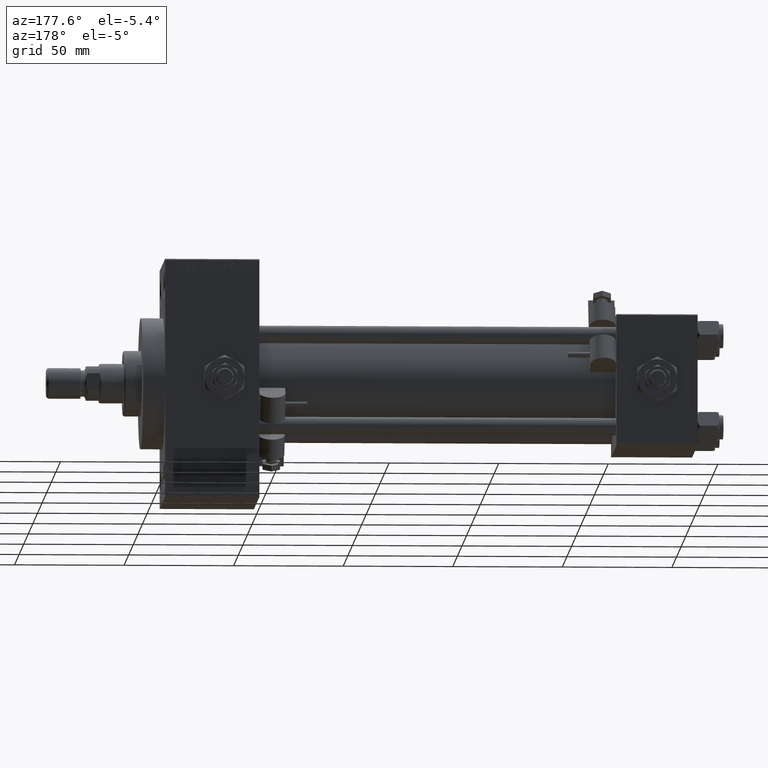
[diagram: clean part render]
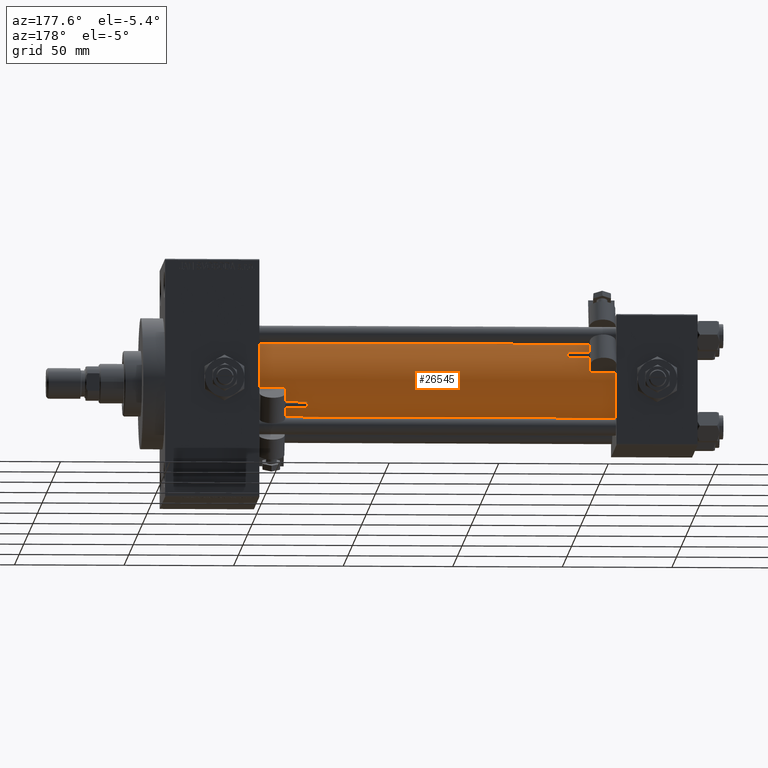
[diagram: same view with one face highlighted and labeled with its STEP entity id]
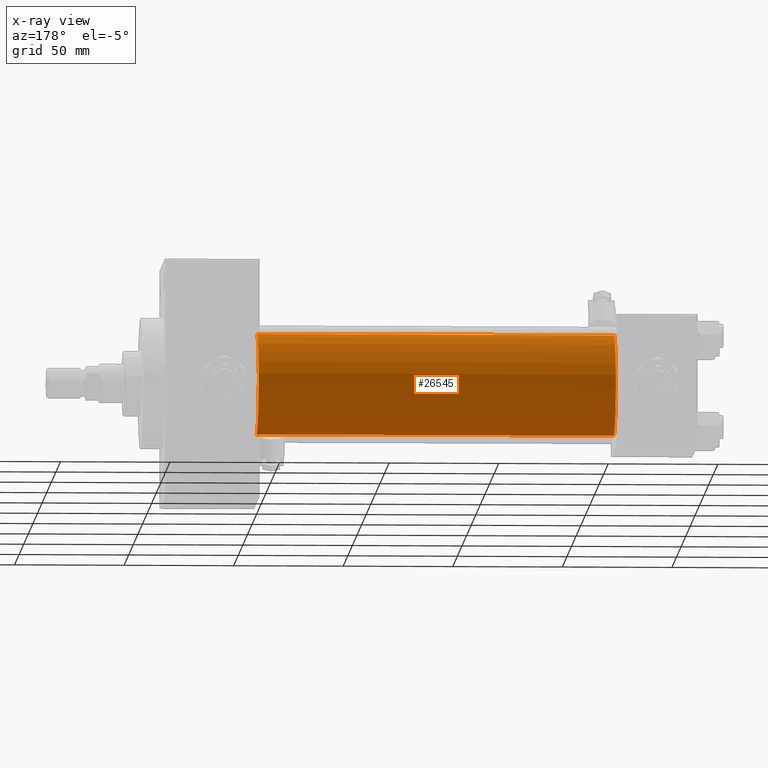
[diagram: x-ray of the same camera — body ghosted, the highlighted face saturated]
A machine part, auxiliary view. The second image highlights one B-rep face of the part: STEP entity #26545.
The next image is the same camera in x-ray: the body ghosted, the highlighted face saturated — about 0% of this face is hidden behind the body in this view.
In plain terms, the highlighted cylindrical surface (partial cylindrical patch) has radius 23 mm, axis along (-1, -0, -0).
Its self-contained STEP definition (entity closure, byte-faithful):
#188 = ORIENTED_EDGE ( 'NONE', *, *, #37328, .F. ) ;
#304 = LINE ( 'NONE', #42728, #10981 ) ;
#631 = DIRECTION ( 'NONE',  ( 0.000000000000000000, 0.000000000000000000, 1.000000000000000000 ) ) ;
#1124 = DIRECTION ( 'NONE',  ( -1.000000000000000000, -0.000000000000000000, -0.000000000000000000 ) ) ;
#2352 = AXIS2_PLACEMENT_3D ( 'NONE', #27592, #8063, #11664 ) ;
#2694 = VERTEX_POINT ( 'NONE', #21381 ) ;
#8063 = DIRECTION ( 'NONE',  ( 1.000000000000000000, 0.000000000000000000, 0.000000000000000000 ) ) ;
#10981 = VECTOR ( 'NONE', #19343, 1000.000000000000000 ) ;
#11659 = EDGE_CURVE ( 'NONE', #27377, #2694, #304, .T. ) ;
#11664 = DIRECTION ( 'NONE',  ( 0.000000000000000000, 0.000000000000000000, -1.000000000000000000 ) ) ;
#13402 = AXIS2_PLACEMENT_3D ( 'NONE', #24006, #1124, #631 ) ;
#16424 = CARTESIAN_POINT ( 'NONE',  ( 200.0000000000000000, 2.146024240737016609E-16, -23.00000000000000000 ) ) ;
#19343 = DIRECTION ( 'NONE',  ( -1.000000000000000000, -0.000000000000000000, -0.000000000000000000 ) ) ;
#21202 = CIRCLE ( 'NONE', #2352, 23.00000000000000000 ) ;
#21303 = CARTESIAN_POINT ( 'NONE',  ( 200.0000000000000000, -2.602085213965210642E-15, 23.00000000000000000 ) ) ;
#21381 = CARTESIAN_POINT ( 'NONE',  ( 37.00000000000000711, -2.602085213965210642E-15, 23.00000000000000000 ) ) ;
#24006 = CARTESIAN_POINT ( 'NONE',  ( 200.0000000000000000, -2.602085213965210642E-15, 0.000000000000000000 ) ) ;
#24070 = CIRCLE ( 'NONE', #46233, 23.00000000000000000 ) ;
#26006 = EDGE_CURVE ( 'NONE', #45077, #2694, #24070, .T. ) ;
#26545 = ADVANCED_FACE ( 'NONE', ( #39698 ), #44551, .T. ) ;
#27377 = VERTEX_POINT ( 'NONE', #21303 ) ;
#27592 = CARTESIAN_POINT ( 'NONE',  ( 200.0000000000000000, -2.602085213965210642E-15, 0.000000000000000000 ) ) ;
#27998 = VERTEX_POINT ( 'NONE', #43702 ) ;
#28234 = DIRECTION ( 'NONE',  ( -1.000000000000000000, -0.000000000000000000, -0.000000000000000000 ) ) ;
#29140 = VECTOR ( 'NONE', #28234, 1000.000000000000000 ) ;
#29173 = EDGE_CURVE ( 'NONE', #27998, #45077, #40316, .T. ) ;
#29814 = DIRECTION ( 'NONE',  ( 1.000000000000000000, -0.000000000000000000, 0.000000000000000000 ) ) ;
#33174 = CARTESIAN_POINT ( 'NONE',  ( 37.00000000000000711, -2.602085213965210642E-15, 0.000000000000000000 ) ) ;
#35680 = EDGE_LOOP ( 'NONE', ( #188, #49103, #46482, #41006 ) ) ;
#37328 = EDGE_CURVE ( 'NONE', #27998, #27377, #21202, .T. ) ;
#39698 = FACE_OUTER_BOUND ( 'NONE', #35680, .T. ) ;
#40316 = LINE ( 'NONE', #16424, #29140 ) ;
#41006 = ORIENTED_EDGE ( 'NONE', *, *, #11659, .F. ) ;
#41146 = DIRECTION ( 'NONE',  ( 0.000000000000000000, 0.000000000000000000, 1.000000000000000000 ) ) ;
#42728 = CARTESIAN_POINT ( 'NONE',  ( 200.0000000000000000, -2.602085213965210642E-15, 23.00000000000000000 ) ) ;
#43348 = CARTESIAN_POINT ( 'NONE',  ( 37.00000000000000711, 2.146024240737016609E-16, -23.00000000000000000 ) ) ;
#43702 = CARTESIAN_POINT ( 'NONE',  ( 200.0000000000000000, 2.146024240737016609E-16, -23.00000000000000000 ) ) ;
#44551 = CYLINDRICAL_SURFACE ( 'NONE', #13402, 23.00000000000000000 ) ;
#45077 = VERTEX_POINT ( 'NONE', #43348 ) ;
#46233 = AXIS2_PLACEMENT_3D ( 'NONE', #33174, #29814, #41146 ) ;
#46482 = ORIENTED_EDGE ( 'NONE', *, *, #26006, .T. ) ;
#49103 = ORIENTED_EDGE ( 'NONE', *, *, #29173, .T. ) ;